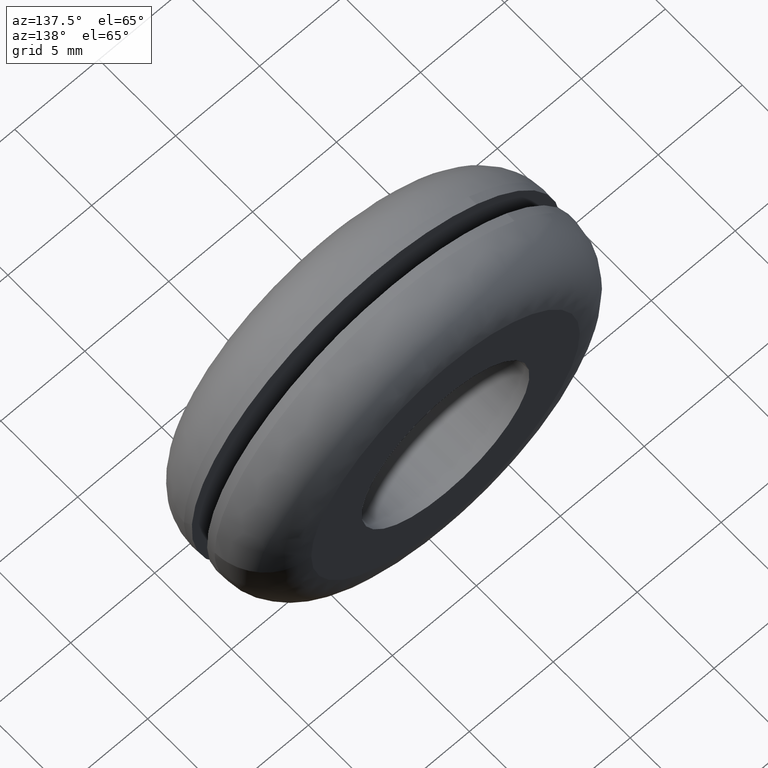
[diagram: clean part render]
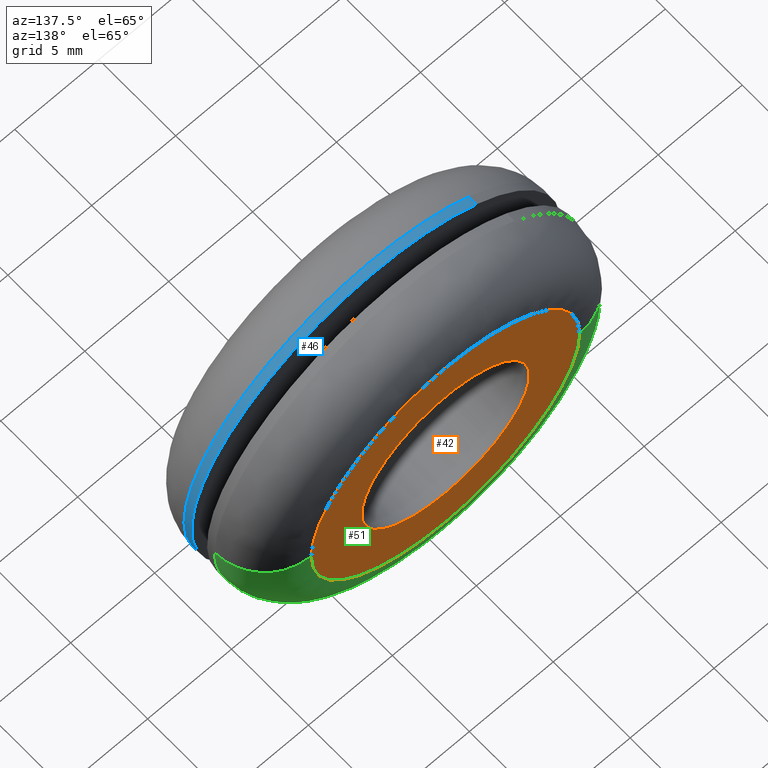
[diagram: same view with three faces highlighted in distinct colors, each labeled with its STEP entity id]
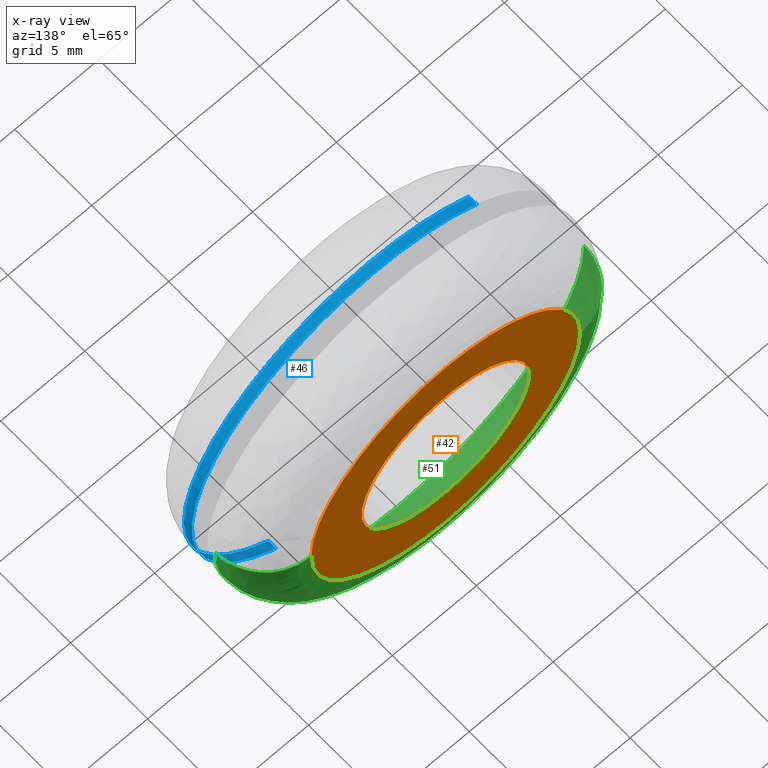
[diagram: x-ray of the same camera — body ghosted, the three highlighted faces saturated]
A machine part, auxiliary view with three faces highlighted in distinct colors.
The next image is the same camera in x-ray (body ghosted, the three faces saturated) — at least one of them is partly hidden behind the body in this view.
Their STEP definitions:

[orange] entity #42 — the highlighted planar face has unit normal (0, -1, 0).
#42=ADVANCED_FACE('',(#79,#80),#78,.F.);
#78=PLANE('',#235);
#79=FACE_OUTER_BOUND('',#236,.T.);
#80=FACE_BOUND('',#237,.T.);
#232=CARTESIAN_POINT('',(-1.66276877538E+001,8.00000000000E+000,1.84000000008E+001));
#233=DIRECTION('',(0.00000000000E+000,-1.00000000000E+000,0.00000000000E+000));
#234=DIRECTION('',(0.00000000000E+000,0.00000000000E+000,-1.00000000000E+000));
#235=AXIS2_PLACEMENT_3D('',#232,#233,#234);
#236=EDGE_LOOP('',(#400,#401,#402));
#237=EDGE_LOOP('',(#403,#404,#405));
#400=ORIENTED_EDGE('',*,*,#502,.F.);
#401=ORIENTED_EDGE('',*,*,#503,.F.);
#402=ORIENTED_EDGE('',*,*,#504,.F.);
#403=ORIENTED_EDGE('',*,*,#505,.T.);
#404=ORIENTED_EDGE('',*,*,#506,.T.);
#405=ORIENTED_EDGE('',*,*,#507,.T.);
#502=EDGE_CURVE('',#625,#626,#627,.T.);
#503=EDGE_CURVE('',#633,#625,#634,.T.);
#504=EDGE_CURVE('',#626,#633,#640,.T.);
#505=EDGE_CURVE('',#646,#647,#648,.T.);
#506=EDGE_CURVE('',#647,#654,#655,.T.);
#507=EDGE_CURVE('',#654,#646,#661,.T.);
#625=VERTEX_POINT('',#946);
#626=VERTEX_POINT('',#947);
#627=CIRCLE('',#951,8.00000000055E+000);
#633=VERTEX_POINT('',#952);
#634=CIRCLE('',#956,8.00000000055E+000);
#640=CIRCLE('',#960,8.00000000055E+000);
#646=VERTEX_POINT('',#961);
#647=VERTEX_POINT('',#962);
#648=CIRCLE('',#966,4.99999999999E+000);
#654=VERTEX_POINT('',#967);
#655=CIRCLE('',#971,4.99999999999E+000);
#661=CIRCLE('',#975,4.99999999999E+000);
#946=CARTESIAN_POINT('',(-8.00000000080E+000,8.00000000000E+000,-1.21271826859E-007));
#947=CARTESIAN_POINT('',(-4.99600361081E-015,8.00000000000E+000,-8.00000000111E+000));
#948=CARTESIAN_POINT('',(-2.50963250181E-010,8.00000000000E+000,-5.53298740158E-010));
#949=DIRECTION('',(3.45956115529E-016,-1.00000000000E+000,2.01464934290E-015));
#950=DIRECTION('',(3.13701703503E-011,-2.01464934289E-015,-1.00000000000E+000));
#951=AXIS2_PLACEMENT_3D('',#948,#949,#950);
#952=CARTESIAN_POINT('',(8.00000000030E+000,8.00000000000E+000,3.98535176652E-008));
#953=CARTESIAN_POINT('',(-2.50963250181E-010,8.00000000000E+000,-5.53298740158E-010));
#954=DIRECTION('',(3.45956115529E-016,-1.00000000000E+000,2.01464934290E-015));
#955=DIRECTION('',(3.13701703503E-011,-2.01464934289E-015,-1.00000000000E+000));
#956=AXIS2_PLACEMENT_3D('',#953,#954,#955);
#957=CARTESIAN_POINT('',(-2.50963250181E-010,8.00000000000E+000,-5.53298740158E-010));
#958=DIRECTION('',(3.45956115529E-016,-1.00000000000E+000,2.01464934290E-015));
#959=DIRECTION('',(3.13701703503E-011,-2.01464934289E-015,-1.00000000000E+000));
#960=AXIS2_PLACEMENT_3D('',#957,#958,#959);
#961=CARTESIAN_POINT('',(-3.66373598126E-015,8.00000000000E+000,-4.99999999998E+000));
#962=CARTESIAN_POINT('',(4.96494555452E+000,8.00000000000E+000,-5.91029306010E-001));
#963=CARTESIAN_POINT('',(4.73932004752E-012,8.00000000000E+000,1.04236619336E-011));
#964=DIRECTION('',(1.39520704593E-014,-1.00000000000E+000,9.63093589618E-014));
#965=DIRECTION('',(-9.48227607545E-013,-9.63093589618E-014,-1.00000000000E+000));
#966=AXIS2_PLACEMENT_3D('',#963,#964,#965);
#967=CARTESIAN_POINT('',(-4.96504784763E+000,8.00000000000E+000,5.90169357593E-001));
#968=CARTESIAN_POINT('',(4.73932004752E-012,8.00000000000E+000,1.04236619336E-011));
#969=DIRECTION('',(1.39520704593E-014,-1.00000000000E+000,9.63093589618E-014));
#970=DIRECTION('',(-9.48227607545E-013,-9.63093589618E-014,-1.00000000000E+000));
#971=AXIS2_PLACEMENT_3D('',#968,#969,#970);
#972=CARTESIAN_POINT('',(4.73932004752E-012,8.00000000000E+000,1.04236619336E-011));
#973=DIRECTION('',(1.39520704593E-014,-1.00000000000E+000,9.63093589618E-014));
#974=DIRECTION('',(-9.48227607545E-013,-9.63093589618E-014,-1.00000000000E+000));
#975=AXIS2_PLACEMENT_3D('',#972,#973,#974);

[blue] entity #46 — the highlighted cylindrical surface (partial cylindrical patch) has radius 11 mm, axis along (0, 1, 0).
#46=ADVANCED_FACE('',(#121),#120,.T.);
#120=CYLINDRICAL_SURFACE('',#257,1.10000000000E+001);
#121=FACE_OUTER_BOUND('',#258,.T.);
#254=CARTESIAN_POINT('',(1.06535095130E-015,3.51250000000E+000,1.90346664528E-015));
#255=DIRECTION('',(6.74541464704E-016,1.00000000000E+000,4.83939772501E-016));
#256=DIRECTION('',(-5.42728861529E-001,-4.03717463500E-017,8.39907960948E-001));
#257=AXIS2_PLACEMENT_3D('',#254,#255,#256);
#258=EDGE_LOOP('',(#422,#423,#424,#425,#426,#427,#428));
#422=ORIENTED_EDGE('',*,*,#491,.T.);
#423=ORIENTED_EDGE('',*,*,#516,.F.);
#424=ORIENTED_EDGE('',*,*,#517,.F.);
#425=ORIENTED_EDGE('',*,*,#518,.F.);
#426=ORIENTED_EDGE('',*,*,#519,.F.);
#427=ORIENTED_EDGE('',*,*,#520,.F.);
#428=ORIENTED_EDGE('',*,*,#521,.T.);
#491=EDGE_CURVE('',#549,#541,#550,.T.);
#516=EDGE_CURVE('',#721,#541,#722,.T.);
#517=EDGE_CURVE('',#728,#721,#729,.T.);
#518=EDGE_CURVE('',#735,#728,#736,.T.);
#519=EDGE_CURVE('',#742,#735,#743,.T.);
#520=EDGE_CURVE('',#749,#742,#750,.T.);
#521=EDGE_CURVE('',#749,#549,#756,.T.);
#541=VERTEX_POINT('',#886);
#549=VERTEX_POINT('',#892);
#550=CIRCLE('',#896,1.10000000000E+001);
#721=VERTEX_POINT('',#1010);
#722=(BOUNDED_CURVE() B_SPLINE_CURVE(1,(#1011,#1012),.UNSPECIFIED.,.F.,.F.) B_SPLINE_CURVE_WITH_KNOTS((2,2),(8.33334128067E-002,9.16666680514E-001),.UNSPECIFIED.) CURVE() GEOMETRIC_REPRESENTATION_ITEM() RATIONAL_B_SPLINE_CURVE((1.00000000000E+000,1.00000000000E+000)) REPRESENTATION_ITEM('') );
#728=VERTEX_POINT('',#1013);
#729=CIRCLE('',#1017,1.10000000000E+001);
#735=VERTEX_POINT('',#1018);
#736=CIRCLE('',#1022,1.10000000000E+001);
#742=VERTEX_POINT('',#1023);
#743=CIRCLE('',#1027,1.10000000000E+001);
#749=VERTEX_POINT('',#1028);
#750=CIRCLE('',#1032,1.09999996210E+001);
#756=(BOUNDED_CURVE() B_SPLINE_CURVE(1,(#1033,#1034),.UNSPECIFIED.,.F.,.F.) B_SPLINE_CURVE_WITH_KNOTS((2,2),(8.33333334462E-002,9.16666666667E-001),.UNSPECIFIED.) CURVE() GEOMETRIC_REPRESENTATION_ITEM() RATIONAL_B_SPLINE_CURVE((7.50000000000E-001,7.50000000000E-001)) REPRESENTATION_ITEM('') );
#886=CARTESIAN_POINT('',(-5.97001746692E+000,3.50000000000E+000,9.23898757682E+000));
#892=CARTESIAN_POINT('',(5.97279914907E+000,3.50000000000E+000,-9.23718952522E+000));
#893=CARTESIAN_POINT('',(8.88178419700E-016,3.50000000000E+000,3.77475828373E-015));
#894=DIRECTION('',(2.79051516876E-017,-1.00000000000E+000,-3.00352140566E-017));
#895=DIRECTION('',(7.77156117238E-016,3.00352140566E-017,-1.00000000000E+000));
#896=AXIS2_PLACEMENT_3D('',#893,#894,#895);
#1010=CARTESIAN_POINT('',(-5.97001747682E+000,3.00000000000E+000,9.23898757042E+000));
#1011=CARTESIAN_POINT('',(-5.97001747682E+000,3.00000004766E+000,9.23898757043E+000));
#1012=CARTESIAN_POINT('',(-5.97001747682E+000,3.50000000831E+000,9.23898757043E+000));
#1013=CARTESIAN_POINT('',(0.00000000000E+000,3.00000000000E+000,1.10000000000E+001));
#1014=CARTESIAN_POINT('',(7.93143328792E-013,2.99999999997E+000,-8.48210390814E-013));
#1015=DIRECTION('',(-9.99149746435E-017,-1.00000000000E+000,2.29610270191E-012));
#1016=DIRECTION('',(7.21039389811E-014,-2.29610270191E-012,-1.00000000000E+000));
#1017=AXIS2_PLACEMENT_3D('',#1014,#1015,#1016);
#1018=CARTESIAN_POINT('',(1.10000000000E+001,3.00000000002E+000,1.45014319181E-005));
#1019=CARTESIAN_POINT('',(7.99360577730E-015,2.99999999996E+000,8.88178419700E-015));
#1020=DIRECTION('',(5.76363183379E-012,-1.00000000000E+000,3.41818144443E-010));
#1021=DIRECTION('',(-9.99921044204E-001,-1.46787632554E-012,1.25660398839E-002));
#1022=AXIS2_PLACEMENT_3D('',#1019,#1020,#1021);
#1023=CARTESIAN_POINT('',(1.09991314862E+001,2.99999999998E+000,-1.38226438723E-001));
#1024=CARTESIAN_POINT('',(7.99360577730E-015,2.99999999996E+000,8.88178419700E-015));
#1025=DIRECTION('',(5.76363183379E-012,-1.00000000000E+000,3.41818144443E-010));
#1026=DIRECTION('',(-9.99921044204E-001,-1.46787632554E-012,1.25660398839E-002));
#1027=AXIS2_PLACEMENT_3D('',#1024,#1025,#1026);
#1028=CARTESIAN_POINT('',(5.97021593776E+000,3.00000000000E+000,-9.23885932659E+000));
#1029=CARTESIAN_POINT('',(3.76372829791E-007,2.99999999998E+000,-2.07984509615E-007));
#1030=DIRECTION('',(2.00606263228E-015,-1.00000000000E+000,-2.17517157535E-012));
#1031=DIRECTION('',(-5.42728813757E-001,-1.82803273771E-012,8.39907991817E-001));
#1032=AXIS2_PLACEMENT_3D('',#1029,#1030,#1031);
#1033=CARTESIAN_POINT('',(5.97001747682E+000,3.00000000004E+000,-9.23898757043E+000));
#1034=CARTESIAN_POINT('',(5.97001747682E+000,3.50000000000E+000,-9.23898757043E+000));

[green] entity #51 — the highlighted face is a freeform B-spline surface patch.
#51=ADVANCED_FACE('',(#171),#170,.T.);
#170=( BOUNDED_SURFACE() B_SPLINE_SURFACE( 2,2,((#342,#343,#344,#345,#346),(#347,#348,#349,#350,#351),(#352,#353,#354,#355,#356),(#357,#358,#359,#360,#361),(#362,#363,#364,#365,#366)), .UNSPECIFIED.,.F.,.F.,.F.) B_SPLINE_SURFACE_WITH_KNOTS((3,2,3),(3,2,3),(-1.57079642759E+000,-1.04719683943E+000,2.13528948612E-006),(3.14159265359E+000,4.71238898038E+000,6.28318530718E+000), .UNSPECIFIED. ) GEOMETRIC_REPRESENTATION_ITEM() RATIONAL_B_SPLINE_SURFACE(((9.33012523951E-001,6.59739482618E-001,9.33012523951E-001,6.59739482618E-001,9.33012523951E-001),(9.33012511055E-001,6.59739473499E-001,9.33012511055E-001,6.59739473499E-001,9.33012511055E-001),(1.00000000000E+000,7.07106781187E-001,1.00000000000E+000,7.07106781187E-001,1.00000000000E+000),(8.66025047903E-001,6.12372184049E-001,8.66025047903E-001,6.12372184049E-001,8.66025047903E-001),(1.00000000000E+000,7.07106781187E-001,1.00000000000E+000,7.07106781187E-001,1.00000000000E+000))) REPRESENTATION_ITEM('') SURFACE() );
#171=FACE_OUTER_BOUND('',#367,.T.);
#342=CARTESIAN_POINT('',(7.99999969050E+000,8.00000000000E+000,-2.35157608223E-015));
#343=CARTESIAN_POINT('',(7.99999969050E+000,8.00000000000E+000,-7.99999969050E+000));
#344=CARTESIAN_POINT('',(-3.38807386922E-013,8.00000000000E+000,-7.99999969050E+000));
#345=CARTESIAN_POINT('',(-7.99999969050E+000,8.00000000000E+000,-7.99999969050E+000));
#346=CARTESIAN_POINT('',(-7.99999969050E+000,8.00000000000E+000,-3.92205991919E-016));
#347=CARTESIAN_POINT('',(8.80384857795E+000,8.00000008293E+000,-2.45001560900E-015));
#348=CARTESIAN_POINT('',(8.80384857795E+000,8.00000008293E+000,-8.80384857795E+000));
#349=CARTESIAN_POINT('',(-3.38905832270E-013,8.00000008293E+000,-8.80384857795E+000));
#350=CARTESIAN_POINT('',(-8.80384857795E+000,8.00000008293E+000,-8.80384857795E+000));
#351=CARTESIAN_POINT('',(-8.80384857795E+000,8.00000008293E+000,-2.93765827675E-016));
#352=CARTESIAN_POINT('',(9.50000184921E+000,7.59807514371E+000,-4.08001387975E-015));
#353=CARTESIAN_POINT('',(9.50000184921E+000,7.59807514371E+000,-9.50000184921E+000));
#354=CARTESIAN_POINT('',(-3.12323387531E-013,7.59807514371E+000,-9.50000184921E+000));
#355=CARTESIAN_POINT('',(-9.50000184922E+000,7.59807514371E+000,-9.50000184921E+000));
#356=CARTESIAN_POINT('',(-9.50000184922E+000,7.59807514371E+000,-1.75326135457E-015));
#357=CARTESIAN_POINT('',(1.10000036984E+001,6.73204724875E+000,-7.59217208004E-015));
#358=CARTESIAN_POINT('',(1.10000036984E+001,6.73204724875E+000,-1.10000036984E+001));
#359=CARTESIAN_POINT('',(-2.55046178745E-013,6.73204724875E+000,-1.10000036984E+001));
#360=CARTESIAN_POINT('',(-1.10000036984E+001,6.73204724875E+000,-1.10000036984E+001));
#361=CARTESIAN_POINT('',(-1.10000036984E+001,6.73204724875E+000,-4.89803719581E-015));
#362=CARTESIAN_POINT('',(1.10000000000E+001,4.99999359413E+000,-1.42490974619E-014));
#363=CARTESIAN_POINT('',(1.10000000000E+001,4.99999359413E+000,-1.10000000000E+001));
#364=CARTESIAN_POINT('',(-1.40124520038E-013,4.99999359413E+000,-1.10000000000E+001));
#365=CARTESIAN_POINT('',(-1.10000000000E+001,4.99999359413E+000,-1.10000000000E+001));
#366=CARTESIAN_POINT('',(-1.10000000000E+001,4.99999359413E+000,-1.15549634835E-014));
#367=EDGE_LOOP('',(#458,#459,#460,#461,#462,#463,#464,#465));
#458=ORIENTED_EDGE('',*,*,#533,.F.);
#459=ORIENTED_EDGE('',*,*,#534,.F.);
#460=ORIENTED_EDGE('',*,*,#535,.F.);
#461=ORIENTED_EDGE('',*,*,#536,.F.);
#462=ORIENTED_EDGE('',*,*,#528,.F.);
#463=ORIENTED_EDGE('',*,*,#502,.T.);
#464=ORIENTED_EDGE('',*,*,#504,.T.);
#465=ORIENTED_EDGE('',*,*,#532,.T.);
#502=EDGE_CURVE('',#625,#626,#627,.T.);
#504=EDGE_CURVE('',#626,#633,#640,.T.);
#528=EDGE_CURVE('',#625,#801,#802,.T.);
#532=EDGE_CURVE('',#633,#822,#829,.T.);
#533=EDGE_CURVE('',#835,#822,#836,.T.);
#534=EDGE_CURVE('',#842,#835,#843,.T.);
#535=EDGE_CURVE('',#849,#842,#850,.T.);
#536=EDGE_CURVE('',#801,#849,#856,.T.);
#625=VERTEX_POINT('',#946);
#626=VERTEX_POINT('',#947);
#627=CIRCLE('',#951,8.00000000055E+000);
#633=VERTEX_POINT('',#952);
#640=CIRCLE('',#960,8.00000000055E+000);
#801=VERTEX_POINT('',#1062);
#802=(BOUNDED_CURVE() B_SPLINE_CURVE(2,(#1063,#1064,#1065,#1066,#1067),.UNSPECIFIED.,.F.,.F.) B_SPLINE_CURVE_WITH_KNOTS((3,2,3),(-1.57079631639E+000,-1.04719683943E+000,2.12488549897E-006),.UNSPECIFIED.) CURVE() GEOMETRIC_REPRESENTATION_ITEM() RATIONAL_B_SPLINE_CURVE((9.33012523951E-001,9.33012525282E-001,1.00000000000E+000,8.66025047903E-001,1.00000000000E+000)) REPRESENTATION_ITEM('') );
#822=VERTEX_POINT('',#1078);
#829=(BOUNDED_CURVE() B_SPLINE_CURVE(2,(#1083,#1084,#1085,#1086,#1087),.UNSPECIFIED.,.F.,.F.) B_SPLINE_CURVE_WITH_KNOTS((3,2,3),(-1.57079642759E+000,-1.04719683943E+000,2.13528948612E-006),.UNSPECIFIED.) CURVE() GEOMETRIC_REPRESENTATION_ITEM() RATIONAL_B_SPLINE_CURVE((9.33012523951E-001,9.33012511055E-001,1.00000000000E+000,8.66025047903E-001,1.00000000000E+000)) REPRESENTATION_ITEM('') );
#835=VERTEX_POINT('',#1088);
#836=CIRCLE('',#1092,1.10000000000E+001);
#842=VERTEX_POINT('',#1093);
#843=CIRCLE('',#1097,1.10000000000E+001);
#849=VERTEX_POINT('',#1098);
#850=CIRCLE('',#1102,1.10000000000E+001);
#856=CIRCLE('',#1106,1.10000000000E+001);
#946=CARTESIAN_POINT('',(-8.00000000080E+000,8.00000000000E+000,-1.21271826859E-007));
#947=CARTESIAN_POINT('',(-4.99600361081E-015,8.00000000000E+000,-8.00000000111E+000));
#948=CARTESIAN_POINT('',(-2.50963250181E-010,8.00000000000E+000,-5.53298740158E-010));
#949=DIRECTION('',(3.45956115529E-016,-1.00000000000E+000,2.01464934290E-015));
#950=DIRECTION('',(3.13701703503E-011,-2.01464934289E-015,-1.00000000000E+000));
#951=AXIS2_PLACEMENT_3D('',#948,#949,#950);
#952=CARTESIAN_POINT('',(8.00000000030E+000,8.00000000000E+000,3.98535176652E-008));
#957=CARTESIAN_POINT('',(-2.50963250181E-010,8.00000000000E+000,-5.53298740158E-010));
#958=DIRECTION('',(3.45956115529E-016,-1.00000000000E+000,2.01464934290E-015));
#959=DIRECTION('',(3.13701703503E-011,-2.01464934289E-015,-1.00000000000E+000));
#960=AXIS2_PLACEMENT_3D('',#957,#958,#959);
#1062=CARTESIAN_POINT('',(-1.10000000000E+001,4.99999363508E+000,4.05085390000E-008));
#1063=CARTESIAN_POINT('',(-8.00000003194E+000,8.00000000000E+000,-3.92205950106E-016));
#1064=CARTESIAN_POINT('',(-8.80384873642E+000,7.99999999144E+000,-2.93766159899E-016));
#1065=CARTESIAN_POINT('',(-9.50000184922E+000,7.59807514371E+000,-1.75326135457E-015));
#1066=CARTESIAN_POINT('',(-1.10000036984E+001,6.73204724875E+000,-4.89803719581E-015));
#1067=CARTESIAN_POINT('',(-1.10000000000E+001,4.99999359413E+000,-1.15549634835E-014));
#1078=CARTESIAN_POINT('',(1.10000000000E+001,4.99999394488E+000,1.19646067771E-005));
#1083=CARTESIAN_POINT('',(7.99999969050E+000,8.00000000000E+000,-2.35157608223E-015));
#1084=CARTESIAN_POINT('',(8.80384857795E+000,8.00000008293E+000,-2.45001560900E-015));
#1085=CARTESIAN_POINT('',(9.50000184921E+000,7.59807514371E+000,-4.08001387975E-015));
#1086=CARTESIAN_POINT('',(1.10000036984E+001,6.73204724875E+000,-7.59217208004E-015));
#1087=CARTESIAN_POINT('',(1.10000000000E+001,4.99999359413E+000,-1.42490974619E-014));
#1088=CARTESIAN_POINT('',(1.09264287962E+001,4.99999359413E+000,-1.27009990178E+000));
#1089=CARTESIAN_POINT('',(-2.55884202716E-011,4.99999679707E+000,9.14290865239E-012));
#1090=DIRECTION('',(-2.59289932673E-007,-1.00000000000E+000,2.91175783148E-007));
#1091=DIRECTION('',(-9.93311708750E-001,2.91175938229E-007,1.15463627435E-001));
#1092=AXIS2_PLACEMENT_3D('',#1089,#1090,#1091);
#1093=CARTESIAN_POINT('',(6.84766100301E+000,4.99999706464E+000,-8.60868972537E+000));
#1094=CARTESIAN_POINT('',(-4.77307082747E-012,4.99999679707E+000,-1.23838717059E-011));
#1095=DIRECTION('',(-3.26982928298E-007,-1.00000000000E+000,-2.91175761644E-007));
#1096=DIRECTION('',(-4.33915529770E-013,-2.91175761644E-007,1.00000000000E+000));
#1097=AXIS2_PLACEMENT_3D('',#1094,#1095,#1096);
#1098=CARTESIAN_POINT('',(0.00000000000E+000,5.00000000000E+000,-1.10000000000E+001));
#1099=CARTESIAN_POINT('',(-4.77307082747E-012,4.99999679707E+000,-1.23838717059E-011));
#1100=DIRECTION('',(-3.26982928298E-007,-1.00000000000E+000,-2.91175761644E-007));
#1101=DIRECTION('',(-4.33915529770E-013,-2.91175761644E-007,1.00000000000E+000));
#1102=AXIS2_PLACEMENT_3D('',#1099,#1100,#1101);
#1103=CARTESIAN_POINT('',(3.08730818688E-012,4.99999681754E+000,-1.04218855768E-011));
#1104=DIRECTION('',(2.89314394486E-007,-1.00000000000E+000,-2.89314395595E-007));
#1105=DIRECTION('',(1.00000000000E+000,2.89314395552E-007,-3.68354189869E-009));
#1106=AXIS2_PLACEMENT_3D('',#1103,#1104,#1105);